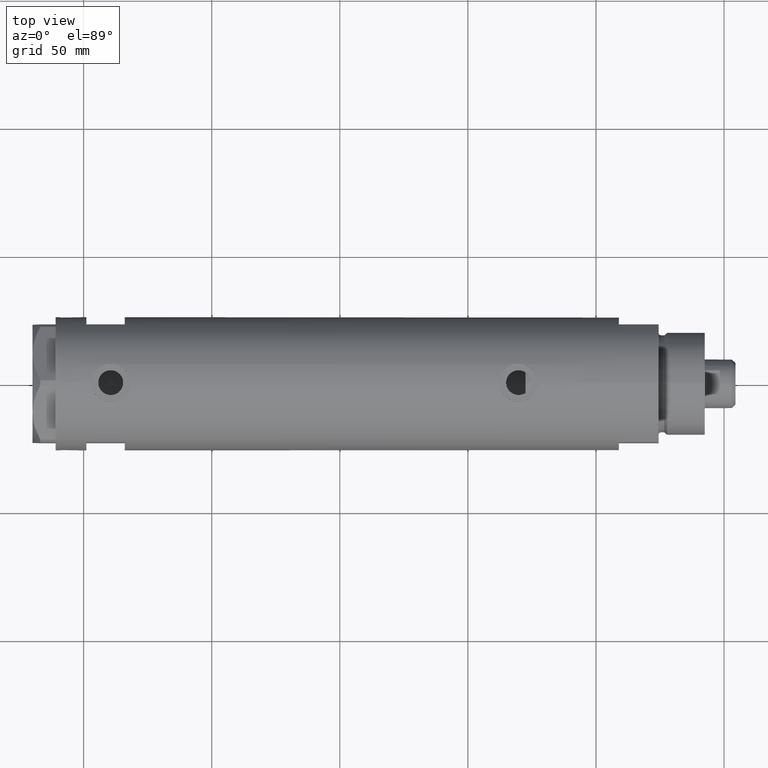
[diagram: clean part render]
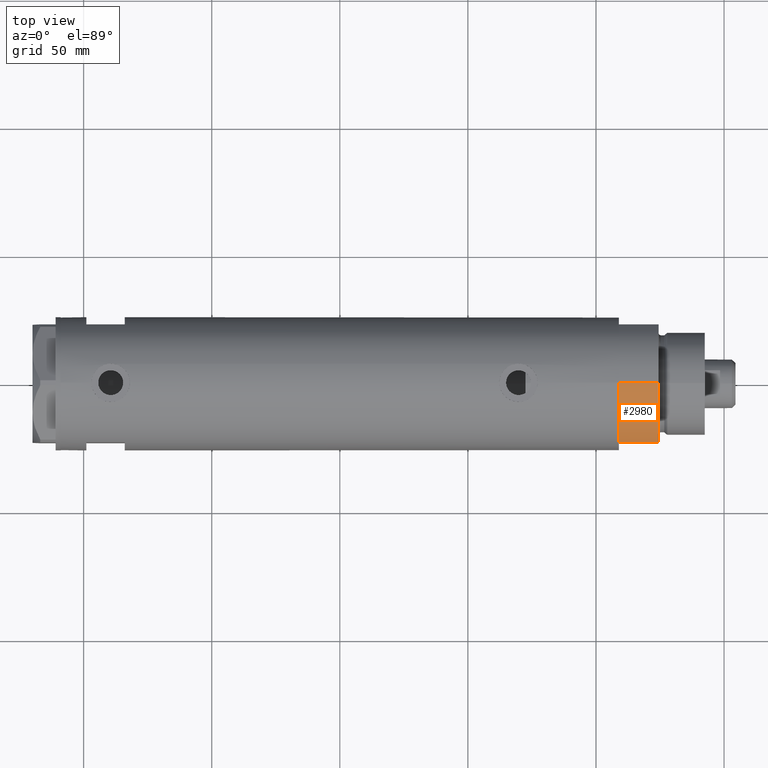
[diagram: same view with one face highlighted and labeled with its STEP entity id]
A machine part, top view. The second image highlights one B-rep face of the part: STEP entity #2980.
In plain terms, the highlighted cylindrical surface (partial cylindrical patch) has radius 26 mm, axis along (-1, -0, 0).
Its self-contained STEP definition (entity closure, byte-faithful):
#53 = DIRECTION ( 'NONE',  ( 0.000000000000000000, 0.000000000000000000, 1.000000000000000000 ) ) ;
#96 = EDGE_CURVE ( 'NONE', #2815, #2807, #1220, .T. ) ;
#224 = VERTEX_POINT ( 'NONE', #4096 ) ;
#338 = AXIS2_PLACEMENT_3D ( 'NONE', #3286, #925, #2521 ) ;
#393 = CARTESIAN_POINT ( 'NONE',  ( -12.12435565298215145, -22.99999999999999645, 0.000000000000000000 ) ) ;
#406 = EDGE_CURVE ( 'NONE', #2815, #3760, #4603, .T. ) ;
#813 = DIRECTION ( 'NONE',  ( -0.000000000000000000, -0.000000000000000000, 1.000000000000000000 ) ) ;
#925 = DIRECTION ( 'NONE',  ( 0.000000000000000000, 0.000000000000000000, 1.000000000000000000 ) ) ;
#1147 = EDGE_CURVE ( 'NONE', #2807, #224, #3183, .T. ) ;
#1220 = LINE ( 'NONE', #4418, #1413 ) ;
#1413 = VECTOR ( 'NONE', #2819, 1000.000000000000000 ) ;
#1460 = EDGE_CURVE ( 'NONE', #224, #3760, #2382, .T. ) ;
#1569 = EDGE_LOOP ( 'NONE', ( #2858, #5090, #3120, #3690 ) ) ;
#1591 = FACE_OUTER_BOUND ( 'NONE', #1569, .T. ) ;
#1639 = DIRECTION ( 'NONE',  ( 1.000000000000000000, 0.000000000000000000, 0.000000000000000000 ) ) ;
#2039 = DIRECTION ( 'NONE',  ( -1.000000000000000000, 0.000000000000000000, 0.000000000000000000 ) ) ;
#2382 = LINE ( 'NONE', #393, #4105 ) ;
#2412 = DIRECTION ( 'NONE',  ( -0.000000000000000000, -0.000000000000000000, -1.000000000000000000 ) ) ;
#2521 = DIRECTION ( 'NONE',  ( 1.000000000000000000, 0.000000000000000000, 0.000000000000000000 ) ) ;
#2792 = CARTESIAN_POINT ( 'NONE',  ( 0.000000000000000000, 0.000000000000000000, 15.50000000000000000 ) ) ;
#2807 = VERTEX_POINT ( 'NONE', #3027 ) ;
#2815 = VERTEX_POINT ( 'NONE', #5137 ) ;
#2819 = DIRECTION ( 'NONE',  ( -0.000000000000000000, -0.000000000000000000, -1.000000000000000000 ) ) ;
#2858 = ORIENTED_EDGE ( 'NONE', *, *, #406, .F. ) ;
#2980 = ADVANCED_FACE ( 'NONE', ( #1591 ), #3942, .T. ) ;
#3027 = CARTESIAN_POINT ( 'NONE',  ( -26.00000000000000355, 0.000000000000000000, 0.000000000000000000 ) ) ;
#3120 = ORIENTED_EDGE ( 'NONE', *, *, #1147, .T. ) ;
#3183 = CIRCLE ( 'NONE', #338, 26.00000000000000355 ) ;
#3286 = CARTESIAN_POINT ( 'NONE',  ( 0.000000000000000000, 0.000000000000000000, 0.000000000000000000 ) ) ;
#3429 = AXIS2_PLACEMENT_3D ( 'NONE', #4784, #2412, #2039 ) ;
#3690 = ORIENTED_EDGE ( 'NONE', *, *, #1460, .T. ) ;
#3760 = VERTEX_POINT ( 'NONE', #4435 ) ;
#3942 = CYLINDRICAL_SURFACE ( 'NONE', #3429, 26.00000000000000355 ) ;
#4096 = CARTESIAN_POINT ( 'NONE',  ( -12.12435565298215501, -22.99999999999999645, 0.000000000000000000 ) ) ;
#4105 = VECTOR ( 'NONE', #813, 1000.000000000000000 ) ;
#4418 = CARTESIAN_POINT ( 'NONE',  ( -26.00000000000000355, 0.000000000000000000, 15.50000000000000000 ) ) ;
#4435 = CARTESIAN_POINT ( 'NONE',  ( -12.12435565298215323, -22.99999999999999645, 15.50000000000000000 ) ) ;
#4603 = CIRCLE ( 'NONE', #5021, 26.00000000000000355 ) ;
#4784 = CARTESIAN_POINT ( 'NONE',  ( 0.000000000000000000, 0.000000000000000000, 15.50000000000000000 ) ) ;
#5021 = AXIS2_PLACEMENT_3D ( 'NONE', #2792, #53, #1639 ) ;
#5090 = ORIENTED_EDGE ( 'NONE', *, *, #96, .T. ) ;
#5137 = CARTESIAN_POINT ( 'NONE',  ( -26.00000000000000355, 0.000000000000000000, 15.50000000000000000 ) ) ;